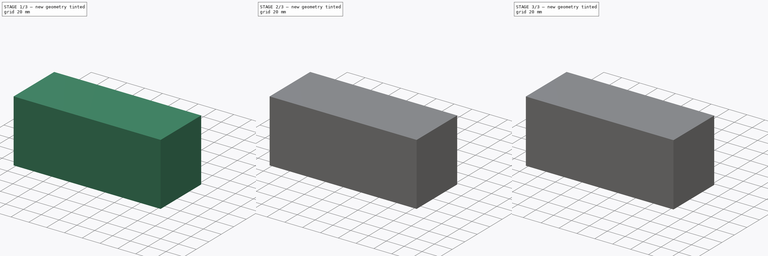
[diagram: build sequence overview — one tinted view per stage of 3, left to right]
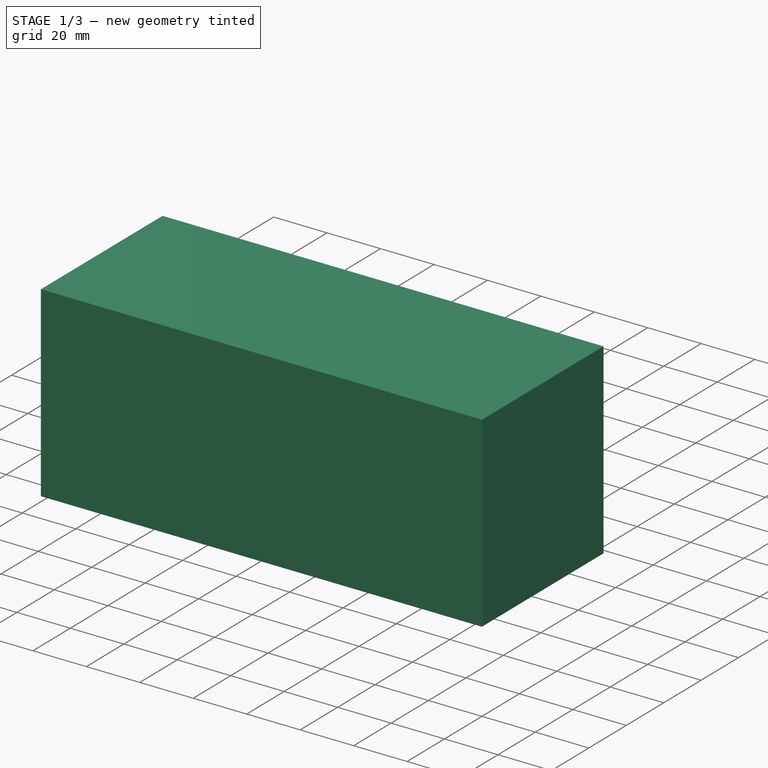
[diagram: stage 1 of 3 — iso view after this stage's code; geometry added in this stage tinted green]
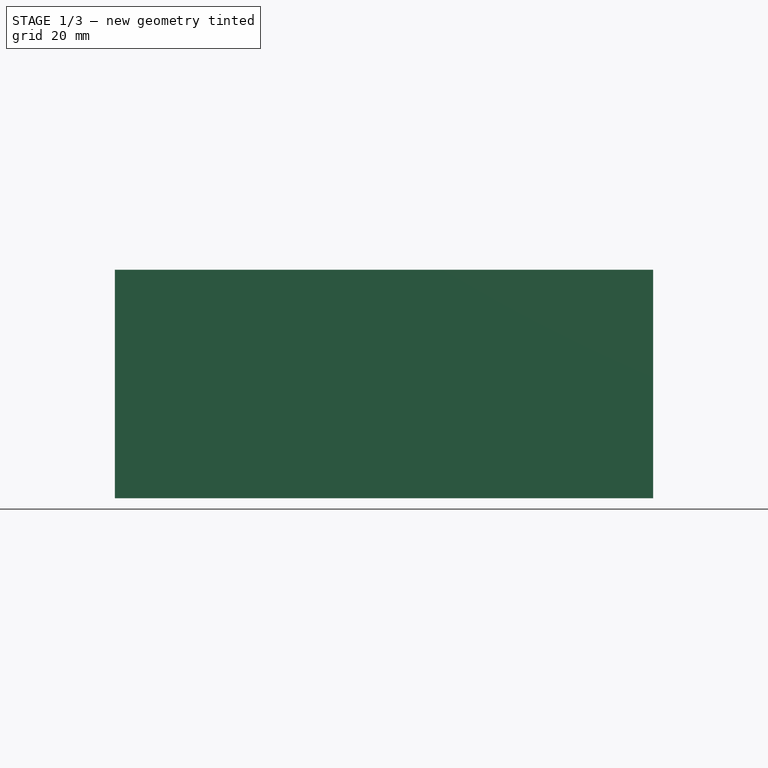
[diagram: stage 1 of 3 — front view after this stage's code; geometry added in this stage tinted green]
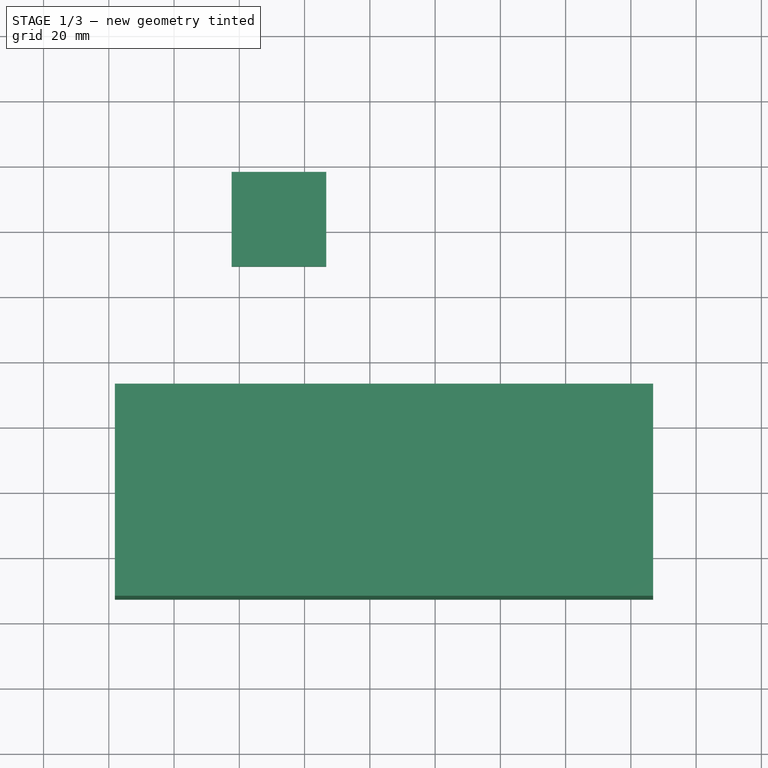
[diagram: stage 1 of 3 — top view after this stage's code; geometry added in this stage tinted green]
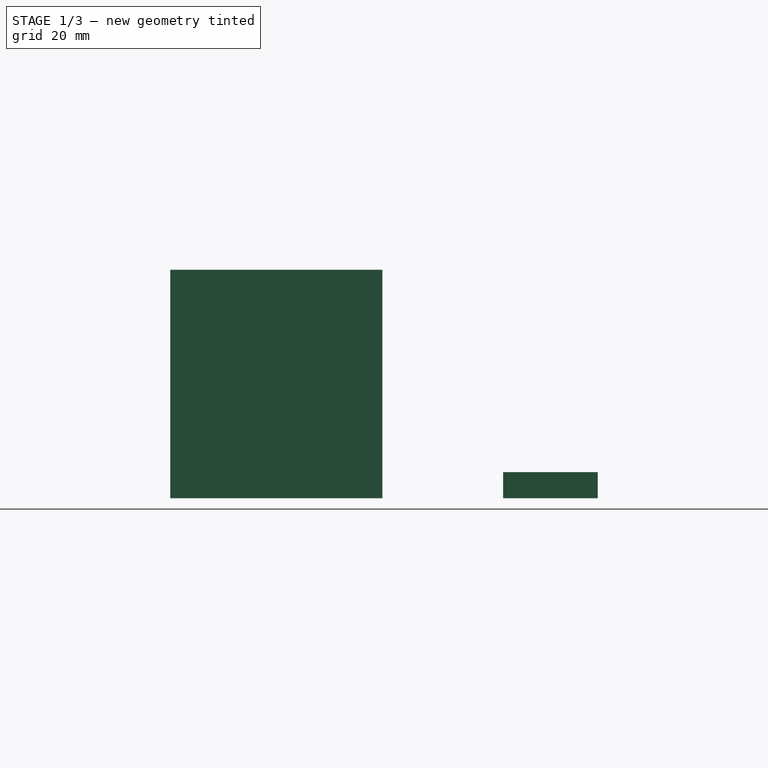
[diagram: stage 1 of 3 — right view after this stage's code; geometry added in this stage tinted green]
FCSTD DOCUMENT  (FreeCAD 0.19R24366 (Git))
Label: ElectronicAssembly
License: All rights reserved
LicenseURL: http://en.wikipedia.org/wiki/All_rights_reserved
objects: Sketcher::SketchObject×8, PartDesign::Pocket×5, App::Part×4, PartDesign::Pad×3, PartDesign::Body×3, App::FeaturePython×2, Part::FeaturePython×2, Part::Feature×1
note: 29 computed .brp shape members not serialized (recipe doc carries the construction recipe); baked Part::Feature solids carry a one-line shape summary decoded from their .brp

FEATURE [PartDesign::Body] Body
  Group = -> [Sketch,Pad,Sketch001,Pocket]
  Origin = -> Origin002
  Tip = -> Pocket
FEATURE [App::Part] Part001  label="ElectronicMountPlate"
  Group = -> [Body]
  Origin = -> Origin001
FEATURE [App::FeaturePython] Constraints  # WARN: FeaturePython — macro-defined, semantics opaque (R4)
  _Version = 1
FEATURE [App::FeaturePython] Elements  # WARN: FeaturePython — macro-defined, semantics opaque (R4)
FEATURE [Part::FeaturePython] Parts  # WARN: FeaturePython — macro-defined, semantics opaque (R4)
  Group = -> [Part,Part001]
  GroupMode = 0
FEATURE [Part::FeaturePython] Assembly  label="ElectricAssembly"  # WARN: FeaturePython — macro-defined, semantics opaque (R4)
  AutoRelax = true
  BuildShape = 0
  Freeze = false
  Group = -> [Constraints,Elements,Parts]
  Verbose = false
  _SolverType = 1
  _Version = 1
FEATURE [Sketcher::SketchObject] Sketch002
  FullyConstrained = false
  MapMode = 5
  Support = -> [XY_Plane004]
  sketch-geometry (4):
    g0: LineSegment StartX=-42.3513 StartY=98.3709 StartZ=0 EndX=-13.3513 EndY=98.3709 EndZ=0
    g1: LineSegment StartX=-13.3513 StartY=98.3709 StartZ=0 EndX=-13.3513 EndY=69.3709 EndZ=0
    g2: LineSegment StartX=-13.3513 StartY=69.3709 StartZ=0 EndX=-42.3513 EndY=69.3709 EndZ=0
    g3: LineSegment StartX=-42.3513 StartY=69.3709 StartZ=0 EndX=-42.3513 EndY=98.3709 EndZ=0
  constraints (10):
    c: Coincident(g0,g1)
    c: Coincident(g1,g2)
    c: Coincident(g2,g3)
    c: Coincident(g3,g0)
    c: Horizontal(g0)
    c: Horizontal(g2)
    c: Vertical(g1)
    c: Vertical(g3)
    c: Equal(g3,g0)
    c: DistanceY(g3,g3) = 29
FEATURE [PartDesign::Pad] Pad001
  Direction = (1,1,1)
  Length = 8
  Length2 = 100
  Profile = -> Sketch002
  Type = 0
FEATURE [PartDesign::Body] Body001
  Group = -> [Sketch002,Pad001,Sketch003,Pocket001,Sketch004,Pocket002,Sketch005,Pocket003]
  Origin = -> Origin004
  Tip = -> Pocket003
FEATURE [App::Part] Part002  label="GPSAntennaHolder"
  Group = -> [Body001]
  Origin = -> Origin003
FEATURE [Sketcher::SketchObject] Sketch006
  FullyConstrained = false
  MapMode = 5
  Support = -> [XY_Plane006]
  sketch-geometry (4):
    g0: LineSegment StartX=-78.1605 StartY=32.3413 StartZ=0 EndX=86.8395 EndY=32.3413 EndZ=0
    g1: LineSegment StartX=86.8395 StartY=32.3413 StartZ=0 EndX=86.8395 EndY=-32.6587 EndZ=0
    g2: LineSegment StartX=86.8395 StartY=-32.6587 StartZ=0 EndX=-78.1605 EndY=-32.6587 EndZ=0
    g3: LineSegment StartX=-78.1605 StartY=-32.6587 StartZ=0 EndX=-78.1605 EndY=32.3413 EndZ=0
  constraints (10):
    c: Coincident(g0,g1)
    c: Coincident(g1,g2)
    c: Coincident(g2,g3)
    c: Coincident(g3,g0)
    c: Horizontal(g0)
    c: Horizontal(g2)
    c: Vertical(g1)
    c: Vertical(g3)
    c: DistanceX(g2,g2) = 165
    c: DistanceY(g1,g1) = 65
FEATURE [PartDesign::Pad] Pad002
  Direction = (1,1,1)
  Length = 70
  Length2 = 100
  Profile = -> Sketch006
  Type = 0
FEATURE [Sketcher::SketchObject] Sketch007
  ExternalGeometry = -> [Pad002]
  FullyConstrained = true
  MapMode = 5
  Placement = pos=(0,0,0) rot=(1,0,0;3.14159rad)
  Support = -> [Pad002]
  sketch-geometry (24):
    g0: LineSegment StartX=-78.1605 StartY=32.6587 StartZ=0 EndX=-76.1605 EndY=30.6587 EndZ=0
    g1: LineSegment StartX=-78.1605 StartY=-32.3413 StartZ=0 EndX=-76.1605 EndY=-30.3413 EndZ=0
    g2: LineSegment StartX=86.8395 StartY=-32.3413 StartZ=0 EndX=84.8395 EndY=-30.3413 EndZ=0
    g3: LineSegment StartX=86.8395 StartY=32.6587 StartZ=0 EndX=84.8395 EndY=30.6587 EndZ=0
    g4: LineSegment StartX=-76.1605 StartY=30.6587 StartZ=0 EndX=-72.1605 EndY=30.6587 EndZ=0
    g5: LineSegment StartX=-72.1605 StartY=30.6587 StartZ=0 EndX=-72.1605 EndY=26.6587 EndZ=0
    g6: LineSegment StartX=-72.1605 StartY=26.6587 StartZ=0 EndX=-76.1605 EndY=26.6587 EndZ=0
    g7: LineSegment StartX=-76.1605 StartY=26.6587 StartZ=0 EndX=-76.1605 EndY=30.6587 EndZ=0
    g8: LineSegment StartX=-76.1605 StartY=-30.3413 StartZ=0 EndX=-72.1605 EndY=-30.3413 EndZ=0
    g9: LineSegment StartX=-72.1605 StartY=-30.3413 StartZ=0 EndX=-72.1605 EndY=-26.3413 EndZ=0
    g10: LineSegment StartX=-72.1605 StartY=-26.3413 StartZ=0 EndX=-76.1605 EndY=-26.3413 EndZ=0
    g11: LineSegment StartX=-76.1605 StartY=-26.3413 StartZ=0 EndX=-76.1605 EndY=-30.3413 EndZ=0
    g12: LineSegment StartX=84.8395 StartY=-30.3413 StartZ=0 EndX=80.8395 EndY=-30.3413 EndZ=0
    g13: LineSegment StartX=80.8395 StartY=-30.3413 StartZ=0 EndX=80.8395 EndY=-26.3413 EndZ=0
    g14: LineSegment StartX=80.8395 StartY=-26.3413 StartZ=0 EndX=84.8395 EndY=-26.3413 EndZ=0
    g15: LineSegment StartX=84.8395 StartY=-26.3413 StartZ=0 EndX=84.8395 EndY=-30.3413 EndZ=0
    g16: LineSegment StartX=84.8395 StartY=30.6587 StartZ=0 EndX=80.8395 EndY=30.6587 EndZ=0
    g17: LineSegment StartX=80.8395 StartY=30.6587 StartZ=0 EndX=80.8395 EndY=26.6587 EndZ=0
    g18: LineSegment StartX=80.8395 StartY=26.6587 StartZ=0 EndX=84.8395 EndY=26.6587 EndZ=0
    g19: LineSegment StartX=84.8395 StartY=26.6587 StartZ=0 EndX=84.8395 EndY=30.6587 EndZ=0
    g20: LineSegment StartX=80.8395 StartY=30.6587 StartZ=0 EndX=-72.1605 EndY=30.6587 EndZ=0
    g21: LineSegment StartX=-76.1605 StartY=-26.3413 StartZ=0 EndX=-76.1605 EndY=26.6587 EndZ=0
    g22: LineSegment StartX=-72.1605 StartY=-30.3413 StartZ=0 EndX=80.8395 EndY=-30.3413 EndZ=0
    g23: LineSegment StartX=84.8395 StartY=-26.3413 StartZ=0 EndX=84.8395 EndY=26.6587 EndZ=0
  constraints (64):
    c: Coincident(g0,g-6)
    c: Coincident(g1,g-6)
    c: Coincident(g2,g-5)
    c: Coincident(g3,g-4)
    c: Equal(g0,g1)
    c: Equal(g3,g0)
    c: Coincident(g4,g5)
    c: Coincident(g5,g6)
    c: Coincident(g6,g7)
    c: Coincident(g7,g4)
    c: Horizontal(g4)
    c: Horizontal(g6)
    c: Vertical(g5)
    c: Vertical(g7)
    c: Coincident(g8,g9)
    c: Coincident(g9,g10)
    c: Coincident(g10,g11)
    c: Coincident(g11,g8)
    c: Horizontal(g8)
    c: Horizontal(g10)
    c: Vertical(g9)
    c: Vertical(g11)
    c: Coincident(g12,g13)
    c: Coincident(g13,g14)
    c: Coincident(g14,g15)
    c: Coincident(g15,g12)
    c: Horizontal(g12)
    c: Horizontal(g14)
    c: Vertical(g13)
    c: Vertical(g15)
    c: Coincident(g16,g17)
    c: Coincident(g17,g18)
    c: Coincident(g18,g19)
    c: Coincident(g19,g16)
    c: Horizontal(g16)
    c: Horizontal(g18)
    c: Vertical(g17)
    c: Vertical(g19)
    c: Equal(g14,g18)
    c: Equal(g17,g5)
    c: Equal(g13,g9)
    c: Equal(g9,g10)
    c: DistanceX(g14,g14) = 4
    c: Coincident(g20,g16)
    c: Coincident(g20,g4)
    c: Coincident(g22,g8)
    c: Coincident(g22,g12)
    c: Coincident(g23,g14)
    c: Coincident(g23,g18)
    c: Vertical(g23)
    c: Coincident(g16,g3)
    c: DistanceX(g3,g3) = 2
    c: DistanceY(g3,g3) = 2
    c: Coincident(g0,g4)
    c: Coincident(g21,g6)
    c: Coincident(g2,g12)
    c: Equal(g2,g3)
    c: Equal(g13,g14)
    c: Coincident(g8,g1)
    c: Coincident(g10,g21)
    c: Equal(g6,g7)
    c: DistanceX(g6,g6) = 4
    c: DistanceX(g0,g0) = 2
    c: DistanceY(g1,g1) = 2
FEATURE [PartDesign::Pocket] Pocket004
  BaseFeature = -> Pad002
  Length = 67
  Length2 = 100
  Profile = -> Sketch007
  Type = 0
FEATURE [PartDesign::Body] Body002
  Group = -> [Sketch006,Pad002,Sketch007,Pocket004]
  Origin = -> Origin006
  Tip = -> Pocket004
FEATURE [App::Part] Part003  label="ElectronicsEnclosure"
  Group = -> [Body002]
  Origin = -> Origin005
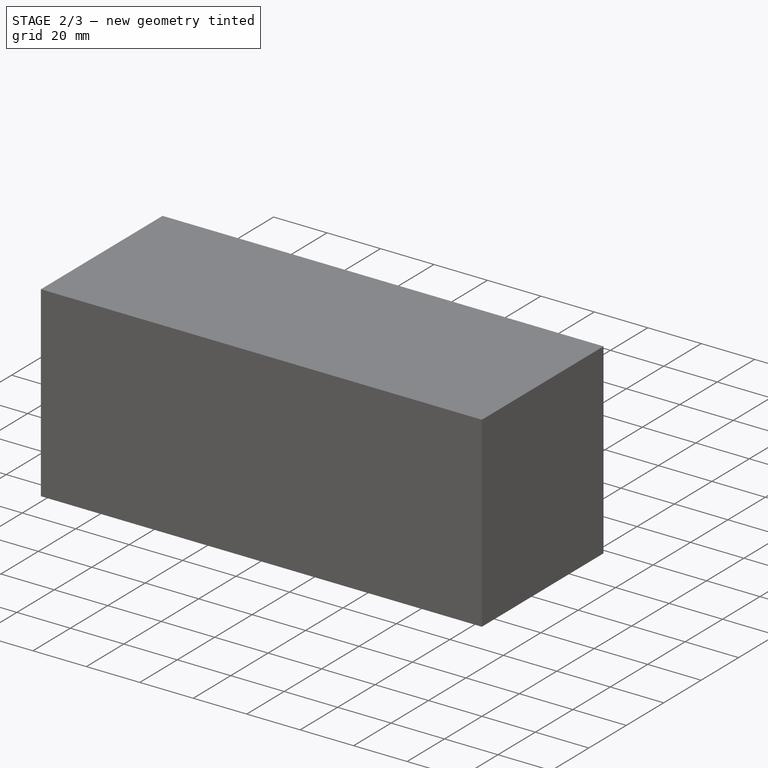
[diagram: stage 2 of 3 — iso view after this stage's code; geometry added in this stage tinted green]
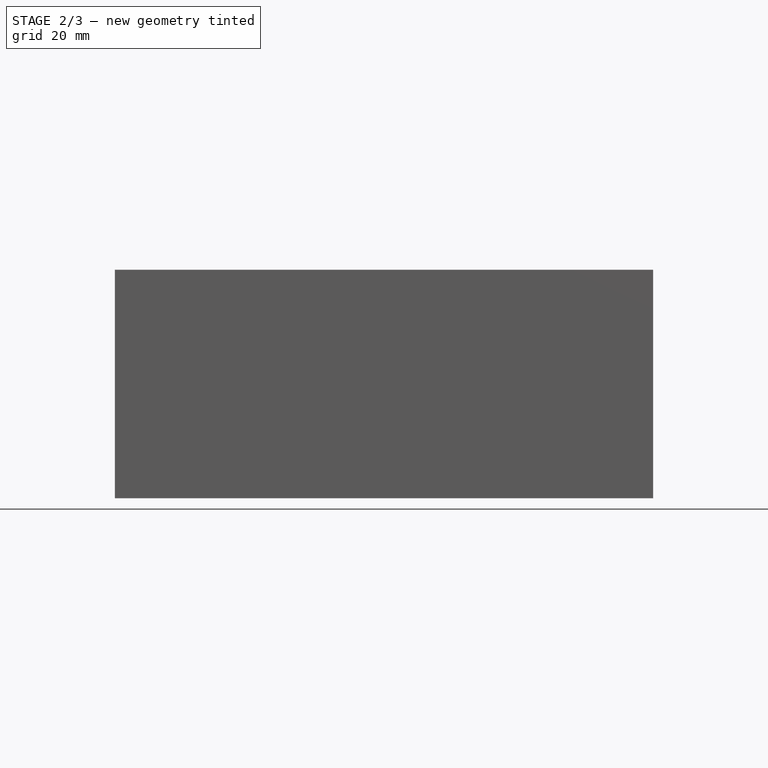
[diagram: stage 2 of 3 — front view after this stage's code; geometry added in this stage tinted green]
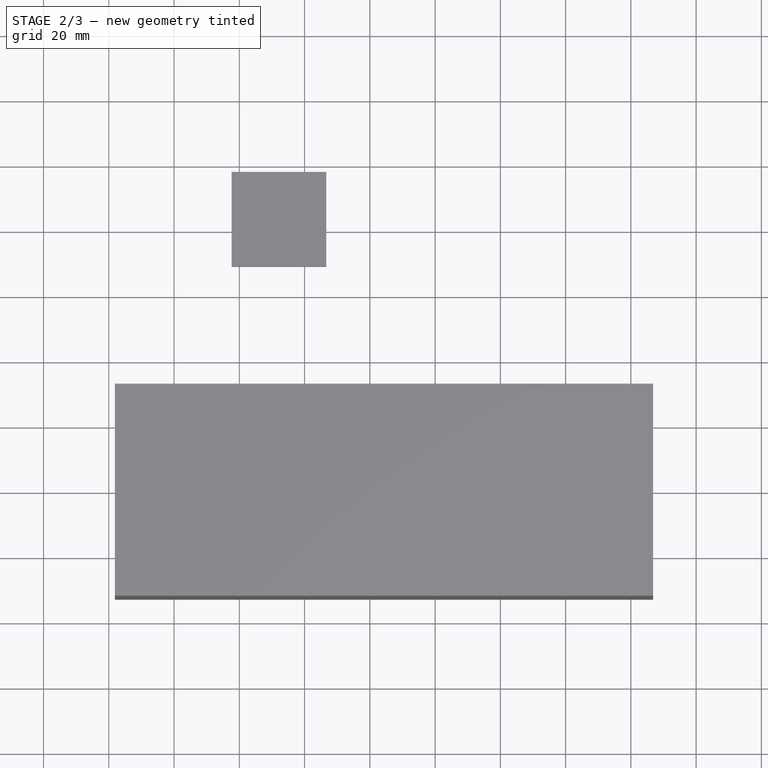
[diagram: stage 2 of 3 — top view after this stage's code; geometry added in this stage tinted green]
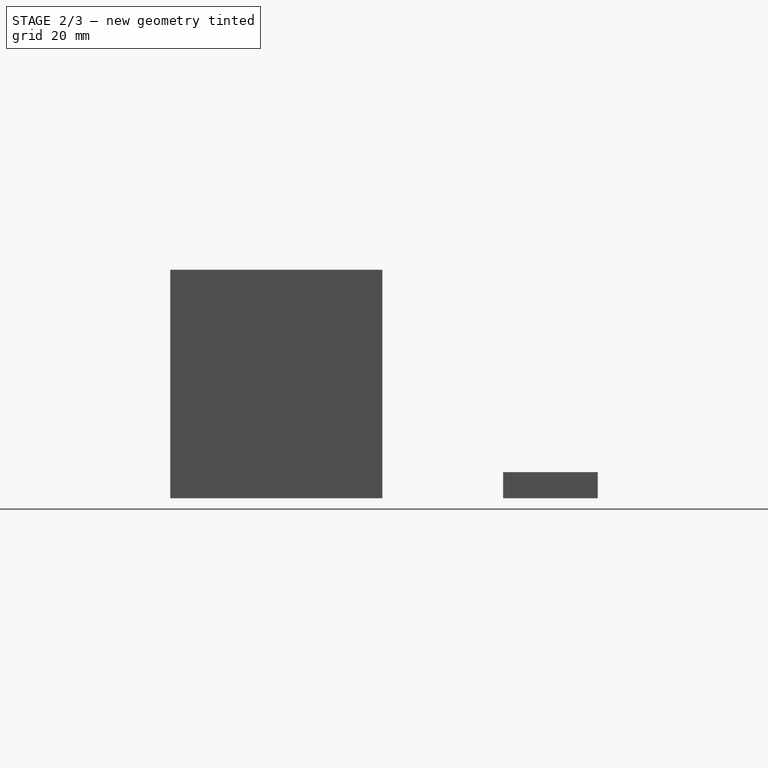
[diagram: stage 2 of 3 — right view after this stage's code; geometry added in this stage tinted green]
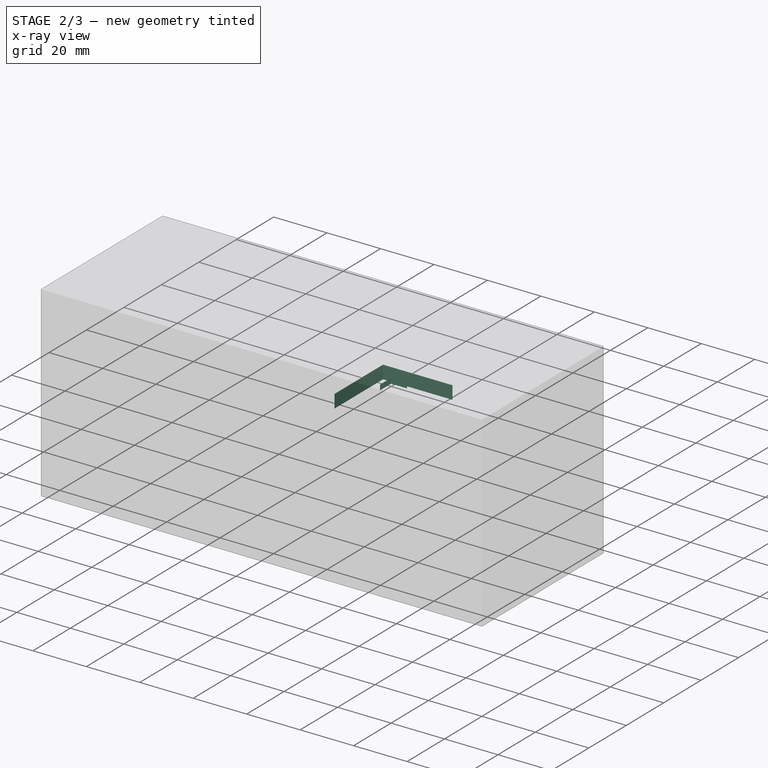
[diagram: stage 2 of 3 — x-ray composite at the iso view; earlier geometry ghosted, this stage's added geometry solid]
FEATURE [Sketcher::SketchObject] Sketch003
  ExternalGeometry = -> [Pad001]
  FullyConstrained = true
  MapMode = 5
  Placement = pos=(0,0,0) rot=(1,0,0;3.14159rad)
  Support = -> [Pad001]
  sketch-geometry (7):
    g0: LineSegment StartX=-40.8513 StartY=-70.8709 StartZ=0 EndX=-14.8513 EndY=-70.8709 EndZ=0
    g1: LineSegment StartX=-14.8513 StartY=-70.8709 StartZ=0 EndX=-14.8513 EndY=-96.8709 EndZ=0
    g2: LineSegment StartX=-14.8513 StartY=-96.8709 StartZ=0 EndX=-40.8513 EndY=-96.8709 EndZ=0
    g3: LineSegment StartX=-40.8513 StartY=-96.8709 StartZ=0 EndX=-40.8513 EndY=-70.8709 EndZ=0
    g4: LineSegment StartX=-42.3513 StartY=-69.3709 StartZ=0 EndX=-40.8513 EndY=-70.8709 EndZ=0
    g5: LineSegment StartX=-14.8513 StartY=-70.8709 StartZ=0 EndX=-13.3513 EndY=-69.3709 EndZ=0
    g6: LineSegment StartX=-42.3513 StartY=-98.3709 StartZ=0 EndX=-40.8513 EndY=-96.8709 EndZ=0
  constraints (18):
    c: Coincident(g0,g1)
    c: Coincident(g1,g2)
    c: Coincident(g2,g3)
    c: Coincident(g3,g0)
    c: Horizontal(g0)
    c: Horizontal(g2)
    c: Vertical(g1)
    c: Vertical(g3)
    c: Equal(g1,g2)
    c: DistanceY(g1,g1) = 26
    c: Coincident(g4,g-4)
    c: Coincident(g4,g0)
    c: Coincident(g5,g0)
    c: Coincident(g5,g-3)
    c: Equal(g5,g4)
    c: Coincident(g6,g-4)
    c: Coincident(g6,g2)
    c: Equal(g4,g6)
FEATURE [PartDesign::Pocket] Pocket001
  BaseFeature = -> Pad001
  Length = 5
  Length2 = 100
  Profile = -> Sketch003
  Type = 0
FEATURE [Sketcher::SketchObject] Sketch004
  ExternalGeometry = -> [Pocket001]
  FullyConstrained = true
  MapMode = 5
  Placement = pos=(0,0,5) rot=(1,0,0;3.14159rad)
  Support = -> [Pocket001]
  sketch-geometry (7):
    g0: LineSegment StartX=-30.8513 StartY=-80.8709 StartZ=0 EndX=-24.8513 EndY=-80.8709 EndZ=0
    g1: LineSegment StartX=-24.8513 StartY=-80.8709 StartZ=0 EndX=-24.8513 EndY=-86.8709 EndZ=0
    g2: LineSegment StartX=-24.8513 StartY=-86.8709 StartZ=0 EndX=-30.8513 EndY=-86.8709 EndZ=0
    g3: LineSegment StartX=-30.8513 StartY=-86.8709 StartZ=0 EndX=-30.8513 EndY=-80.8709 EndZ=0
    g4: LineSegment StartX=-30.8513 StartY=-80.8709 StartZ=0 EndX=-40.8513 EndY=-70.8709 EndZ=0
    g5: LineSegment StartX=-24.8513 StartY=-86.8709 StartZ=0 EndX=-14.8513 EndY=-96.8709 EndZ=0
    g6: LineSegment StartX=-24.8513 StartY=-80.8709 StartZ=0 EndX=-14.8513 EndY=-70.8709 EndZ=0
  constraints (18):
    c: Coincident(g0,g1)
    c: Coincident(g1,g2)
    c: Coincident(g2,g3)
    c: Coincident(g3,g0)
    c: Horizontal(g0)
    c: Horizontal(g2)
    c: Vertical(g1)
    c: Vertical(g3)
    c: Equal(g1,g2)
    c: Coincident(g4,g0)
    c: Coincident(g4,g-3)
    c: Coincident(g5,g1)
    c: Coincident(g5,g-4)
    c: Equal(g4,g5)
    c: Coincident(g6,g0)
    c: Coincident(g6,g-5)
    c: Equal(g6,g4)
    c: DistanceX(g0,g0) = 6
FEATURE [PartDesign::Pocket] Pocket002
  BaseFeature = -> Pocket001
  Length = 2
  Length2 = 100
  Profile = -> Sketch004
  Type = 0
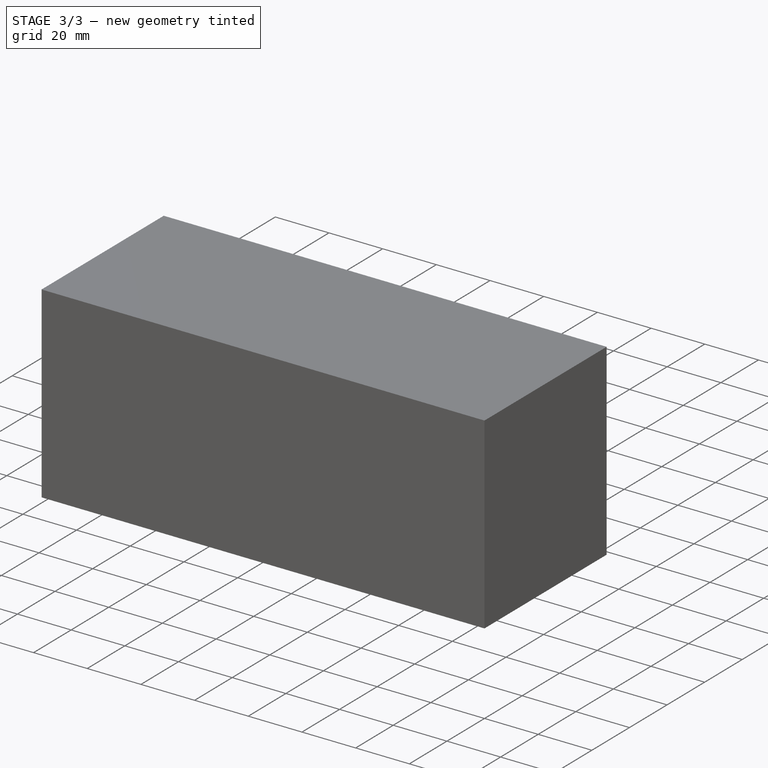
[diagram: stage 3 of 3 — iso view after this stage's code; geometry added in this stage tinted green]
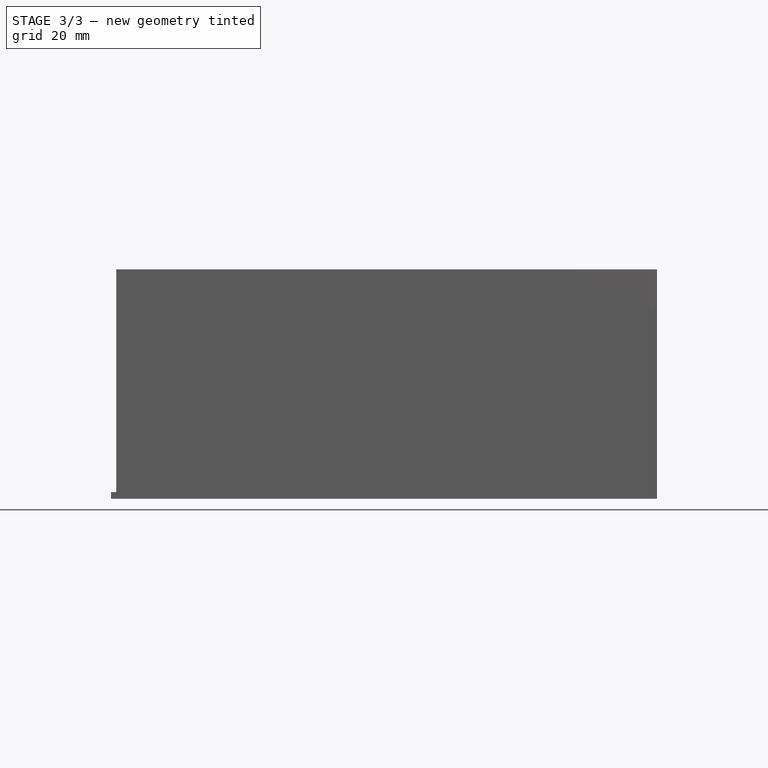
[diagram: stage 3 of 3 — front view after this stage's code; geometry added in this stage tinted green]
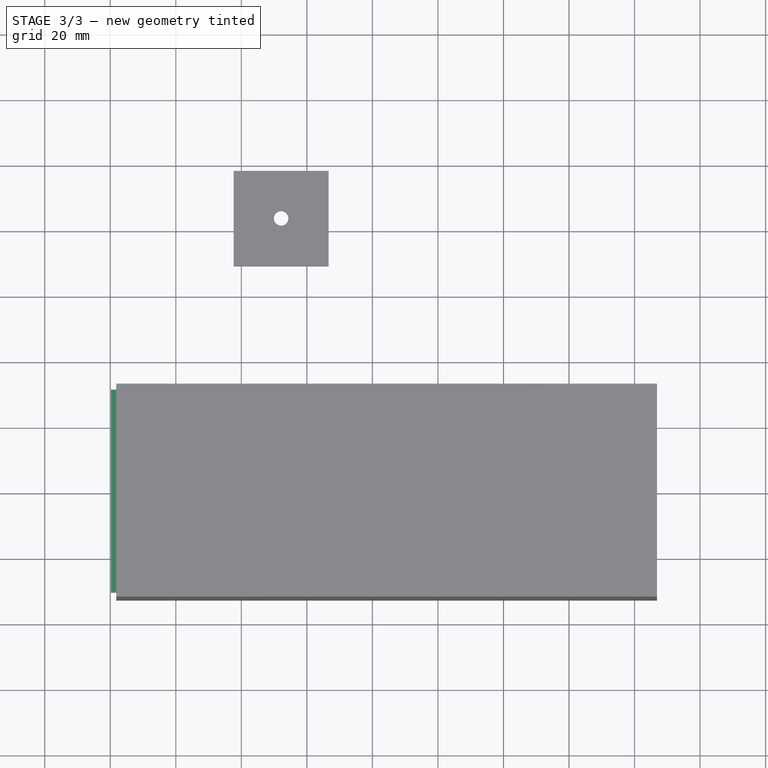
[diagram: stage 3 of 3 — top view after this stage's code; geometry added in this stage tinted green]
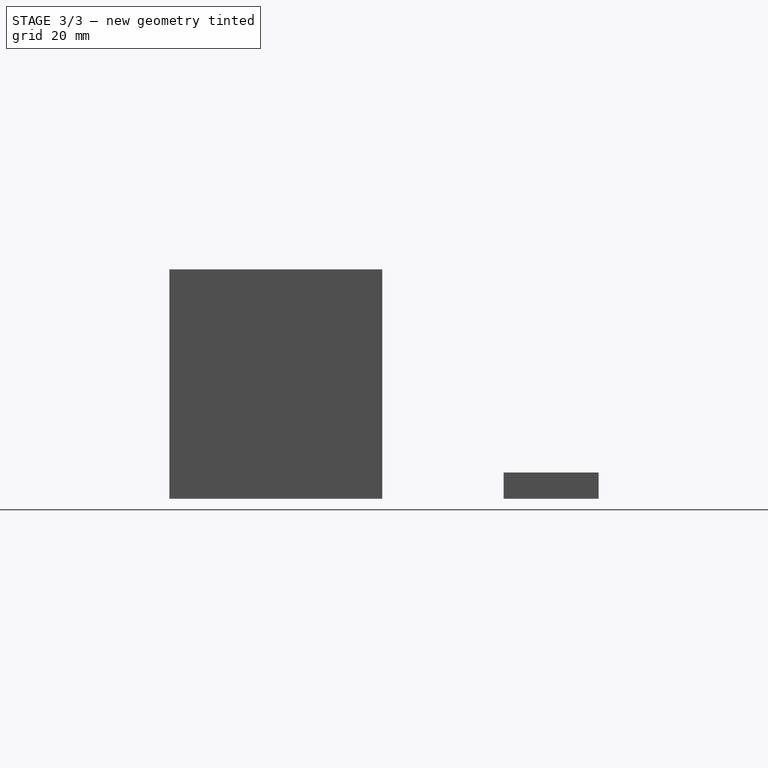
[diagram: stage 3 of 3 — right view after this stage's code; geometry added in this stage tinted green]
FEATURE [Part::Feature] Solid  label="ArduinoMega_STEP_AP203"
  shape: bbox 108 x 53.42 x 12.95 mm, 1851 faces (baked)
FEATURE [App::Part] Part  label="ArduinoMega"
  Group = -> [Solid]
  Origin = -> Origin
FEATURE [Sketcher::SketchObject] Sketch  label="Base"
  FullyConstrained = false
  MapMode = 5
  Support = -> [XY_Plane002]
  sketch-geometry (4):
    g0: LineSegment StartX=-79.7627 StartY=31.709 StartZ=0 EndX=78.9041 EndY=31.709 EndZ=0
    g1: LineSegment StartX=78.9041 StartY=31.709 StartZ=0 EndX=78.9041 EndY=-30.2318 EndZ=0
    g2: LineSegment StartX=78.9041 StartY=-30.2318 StartZ=0 EndX=-79.7627 EndY=-30.2318 EndZ=0
    g3: LineSegment StartX=-79.7627 StartY=-30.2318 StartZ=0 EndX=-79.7627 EndY=31.709 EndZ=0
  constraints (8):
    c: Coincident(g0,g1)
    c: Coincident(g1,g2)
    c: Coincident(g2,g3)
    c: Coincident(g3,g0)
    c: Horizontal(g0)
    c: Horizontal(g2)
    c: Vertical(g1)
    c: Vertical(g3)
FEATURE [PartDesign::Pad] Pad  label="MountPlate"
  Direction = (1,1,1)
  Length = 2
  Length2 = 100
  Profile = -> Sketch
  Type = 0
FEATURE [Sketcher::SketchObject] Sketch001  label="MountHoles"
  ExternalGeometry = -> [Pad]
  FullyConstrained = false
  MapMode = 5
  Placement = pos=(0,0,0) rot=(1,0,0;3.14159rad)
  Support = -> [Pad]
  sketch-geometry (9):
    g0: Circle CenterX=-13.9627 CenterY=19.297 CenterZ=0 NormalX=0 NormalY=0 NormalZ=1 AngleXU=0 Radius=1.5
    g1: Circle CenterX=-44.9627 CenterY=24.197 CenterZ=0 NormalX=0 NormalY=0 NormalZ=1 AngleXU=0 Radius=1.5
    g2: Circle CenterX=-38.4057 CenterY=-24.1762 CenterZ=0 NormalX=0 NormalY=0 NormalZ=1 AngleXU=0 Radius=1.77924
    g3: Circle CenterX=36.7563 CenterY=-24.2959 CenterZ=0 NormalX=0 NormalY=0 NormalZ=1 AngleXU=0 Radius=1.92985
    g4: Circle CenterX=36.7563 CenterY=24.1764 CenterZ=0 NormalX=0 NormalY=0 NormalZ=1 AngleXU=0 Radius=1.5605
    g5: LineSegment StartX=-49.7627 StartY=26.697 StartZ=0 EndX=51.2373 EndY=26.697 EndZ=0
    g6: LineSegment StartX=51.2373 StartY=26.697 StartZ=0 EndX=51.2373 EndY=-26.303 EndZ=0
    g7: LineSegment StartX=51.2373 StartY=-26.303 StartZ=0 EndX=-49.7627 EndY=-26.303 EndZ=0
    g8: LineSegment StartX=-49.7627 StartY=-26.303 StartZ=0 EndX=-49.7627 EndY=26.697 EndZ=0
  constraints (17):
    c: Coincident(g5,g6)
    c: Coincident(g6,g7)
    c: Coincident(g7,g8)
    c: Coincident(g8,g5)
    c: Horizontal(g5)
    c: Horizontal(g7)
    c: Vertical(g6)
    c: Vertical(g8)
    c: DistanceX(g5,g5) = 101
    c: DistanceY(g8,g8) = 53
    c: Radius(g1) = 1.5
    c: DistanceX(g5,g1) = 4.8
    c: DistanceY(g1,g5) = 2.5
    c: DistanceX(g5,g0) = 35.8
    c: Radius(g0) = 1.5
    c: DistanceY(g0,g5) = 7.4
    c: DistanceX(g-3,g5) = 30
FEATURE [PartDesign::Pocket] Pocket
  BaseFeature = -> Pad
  Length = 10
  Length2 = 100
  Profile = -> Sketch001
  Type = 0
FEATURE [Sketcher::SketchObject] Sketch005
  ExternalGeometry = -> [Pocket002]
  FullyConstrained = true
  MapMode = 5
  Placement = pos=(0,0,7) rot=(1,0,0;3.14159rad)
  Support = -> [Pocket002]
  sketch-geometry (3):
    g0: Circle CenterX=-27.8513 CenterY=-83.8709 CenterZ=0 NormalX=0 NormalY=0 NormalZ=1 AngleXU=0 Radius=2.2
    g1: LineSegment StartX=-30.8513 StartY=-80.8709 StartZ=0 EndX=-24.8513 EndY=-86.8709 EndZ=0
    g2: LineSegment StartX=-30.8513 StartY=-86.8709 StartZ=0 EndX=-24.8513 EndY=-80.8709 EndZ=0
  constraints (7):
    c: Coincident(g1,g-3)
    c: Coincident(g1,g-4)
    c: Coincident(g2,g-6)
    c: Coincident(g2,g-5)
    c: PointOnObject(g0,g2)
    c: PointOnObject(g0,g1)
    c: Radius(g0) = 2.2
FEATURE [PartDesign::Pocket] Pocket003
  BaseFeature = -> Pocket002
  Length = 5
  Length2 = 100
  Profile = -> Sketch005
  Type = 0
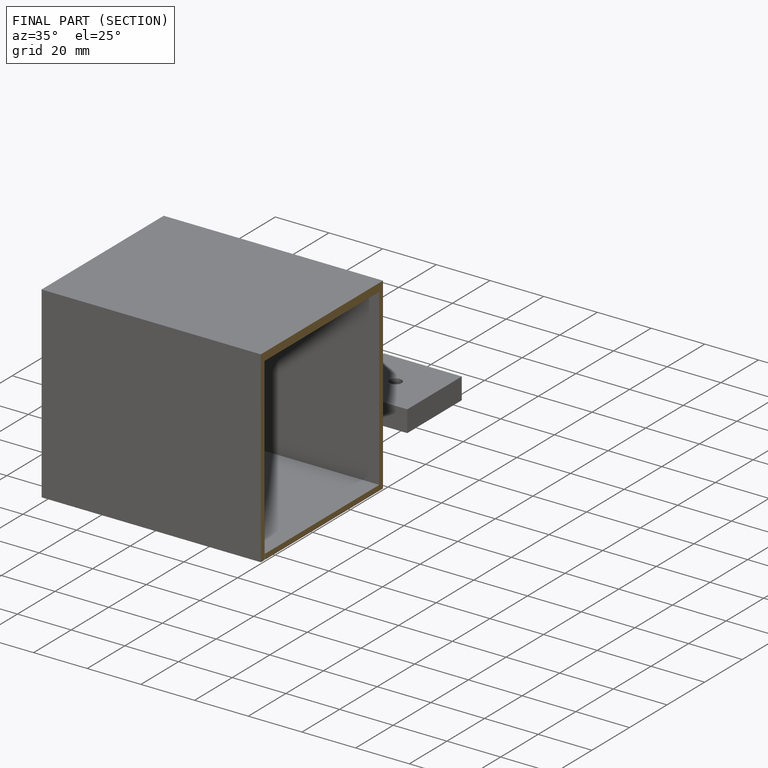
[diagram: finished part — half-section view (interior)]
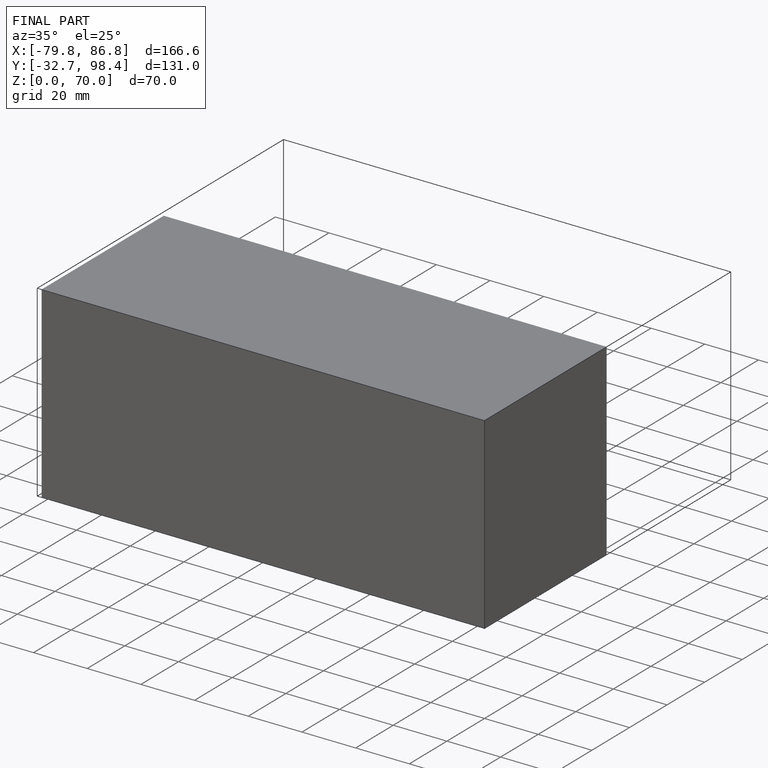
[diagram: finished part — iso view with bounding-box wireframe]
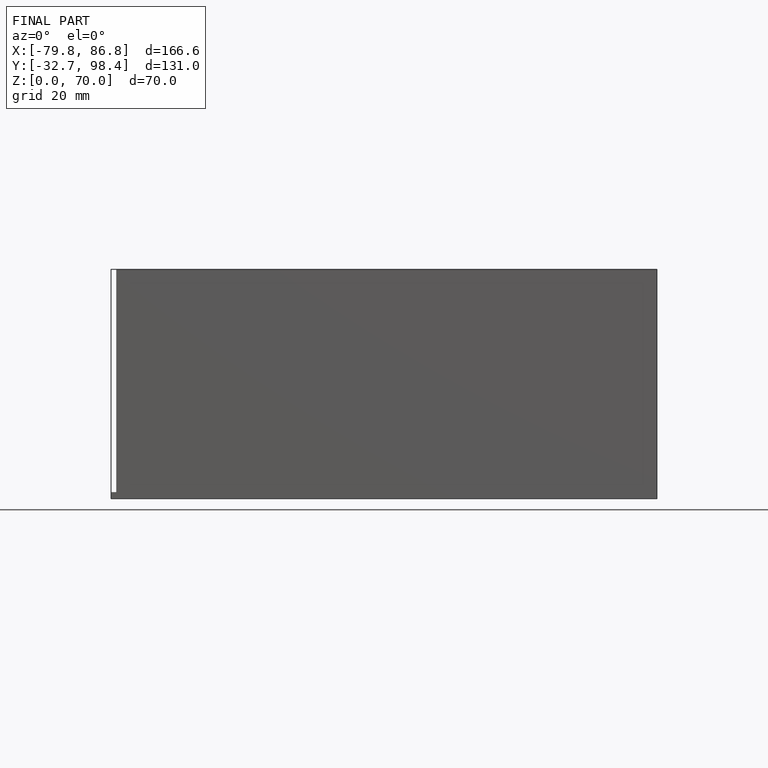
[diagram: finished part — front view with bounding-box wireframe]
